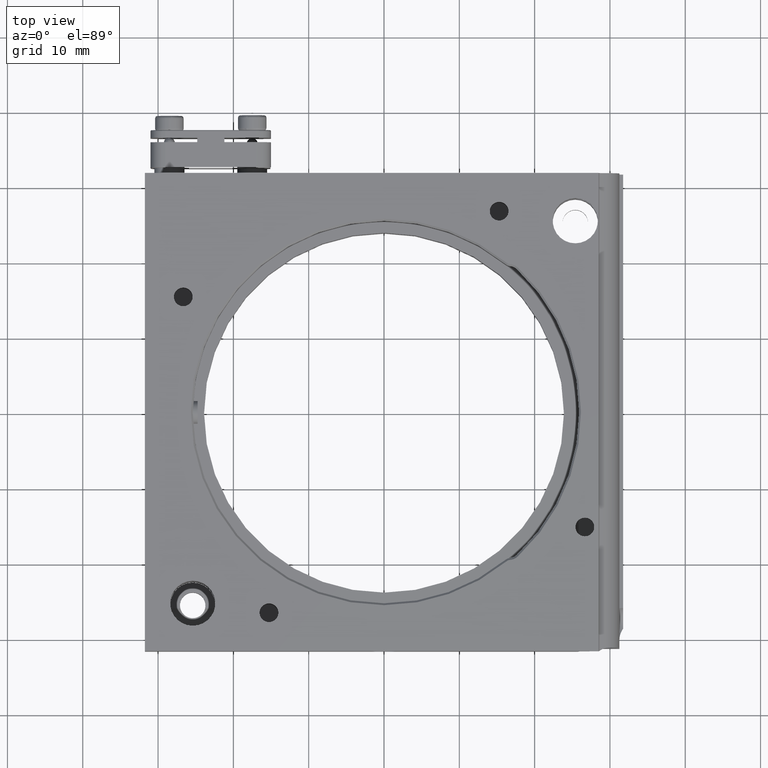
[diagram: clean part render]
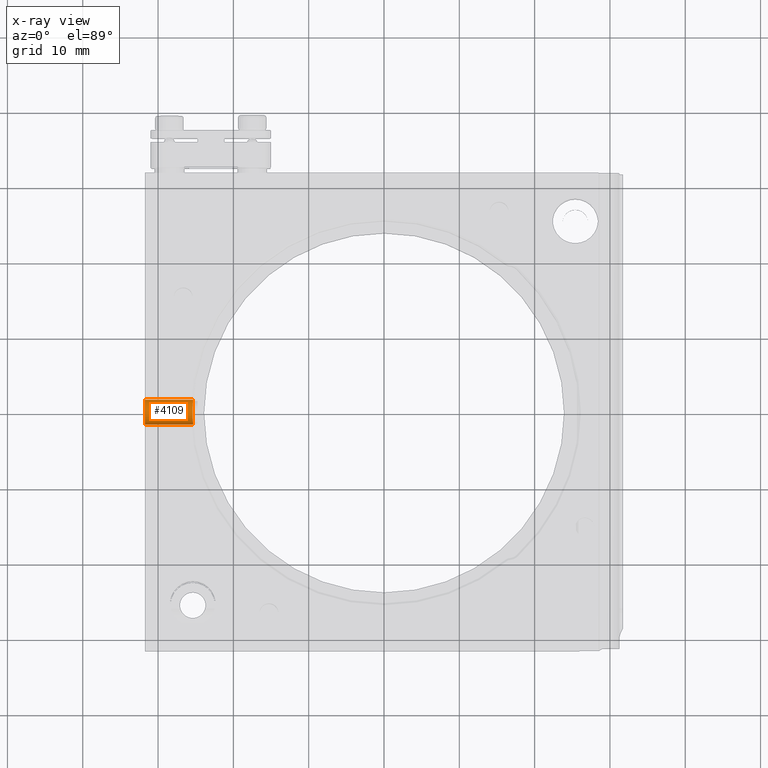
[diagram: x-ray — body ghosted, one internal face saturated and labeled with its STEP entity id]
A machine part, top view, then the same camera in x-ray: the body is ghosted and one INTERNAL B-rep face — a face not visible from any outside direction — is saturated and labeled: STEP entity #4109.
In plain terms, the highlighted cylindrical surface (edge-blend (fillet) strip) has radius 1.65 mm, axis along (-1, 0, -0).
Its self-contained STEP definition (entity closure, byte-faithful):
#483 = CARTESIAN_POINT ( 'NONE',  ( -31.75000000000000000, 1.649999999999995914, 6.249999999999998224 ) ) ;
#624 = CARTESIAN_POINT ( 'NONE',  ( -25.35965144490063139, 1.432363571366435995, 5.423897442466319774 ) ) ;
#685 = B_SPLINE_CURVE_WITH_KNOTS ( 'NONE', 3,
 ( #2923, #4619, #6178, #7594, #6032, #9273, #624, #9328, #8408, #3071, #2152, #3125, #5279, #732, #3741, #2256, #3843, #6839, #9918, #9224, #4568, #6942, #2976, #3792, #8561, #7648 ),
 .UNSPECIFIED., .F., .F.,
 ( 4, 2, 2, 2, 2, 2, 2, 2, 2, 2, 2, 2, 4 ),
 ( 0.002578239946919240466, 0.002900521519949634218, 0.003222803092980028403, 0.003545084666010422155, 0.003867366239040816341, 0.004511929385101603844, 0.005156492531162391348, 0.005478774104192785099, 0.005801055677223178851, 0.006123337250253572603, 0.006445618823283967222, 0.007090181969344757328, 0.007734745115405546566 ),
 .UNSPECIFIED. ) ;
#732 = CARTESIAN_POINT ( 'NONE',  ( -25.39999998176180540, -0.1089796337485973293, 4.600000280757642557 ) ) ;
#1116 = VERTEX_POINT ( 'NONE', #5051 ) ;
#1150 = CARTESIAN_POINT ( 'NONE',  ( -25.34635082215978485, -1.649999999999998579, 6.249999999999998224 ) ) ;
#1581 = DIRECTION ( 'NONE',  ( -1.000000000000000000, 5.551115123125782702E-17, -1.232595164407830946E-32 ) ) ;
#2152 = CARTESIAN_POINT ( 'NONE',  ( -25.38717044940126044, 0.8312330004580452680, 4.808581895595295030 ) ) ;
#2256 = CARTESIAN_POINT ( 'NONE',  ( -25.39663054787494545, -0.4269281395663249157, 4.652570847904353712 ) ) ;
#2296 = EDGE_CURVE ( 'NONE', #4904, #3871, #6404, .T. ) ;
#2341 = VECTOR ( 'NONE', #1581, 1000.000000000000000 ) ;
#2594 = DIRECTION ( 'NONE',  ( 0.000000000000000000, -1.000000000000000000, 0.000000000000000000 ) ) ;
#2832 = EDGE_CURVE ( 'NONE', #1116, #9043, #5418, .T. ) ;
#2923 = CARTESIAN_POINT ( 'NONE',  ( -25.34635082215978485, 1.649999999999995248, 6.249999999999998224 ) ) ;
#2976 = CARTESIAN_POINT ( 'NONE',  ( -25.35920202362326847, -1.441417493431952135, 5.418766164113271167 ) ) ;
#3071 = CARTESIAN_POINT ( 'NONE',  ( -25.38016462358086756, 1.015091016159176851, 4.931532343093524062 ) ) ;
#3125 = CARTESIAN_POINT ( 'NONE',  ( -25.39705834915696059, 0.4345099970300480008, 4.643813362265427180 ) ) ;
#3144 = EDGE_LOOP ( 'NONE', ( #4983, #5161, #5838, #6935 ) ) ;
#3299 = DIRECTION ( 'NONE',  ( -1.000000000000000000, 5.551115123125782702E-17, -1.232595164407830946E-32 ) ) ;
#3741 = CARTESIAN_POINT ( 'NONE',  ( -25.39929918249136875, -0.2161292666481816616, 4.610690489133705050 ) ) ;
#3747 = EDGE_CURVE ( 'NONE', #1116, #4904, #685, .T. ) ;
#3792 = CARTESIAN_POINT ( 'NONE',  ( -25.34929937498809949, -1.606185811958850129, 5.815487379059358197 ) ) ;
#3843 = CARTESIAN_POINT ( 'NONE',  ( -25.39463141391721024, -0.5316699408913867497, 4.684270159440830028 ) ) ;
#3871 = VERTEX_POINT ( 'NONE', #6282 ) ;
#4109 = ADVANCED_FACE ( 'NONE', ( #5614 ), #8551, .F. ) ;
#4568 = CARTESIAN_POINT ( 'NONE',  ( -25.37670523010321944, -1.090243661757398952, 5.006844591166569991 ) ) ;
#4619 = CARTESIAN_POINT ( 'NONE',  ( -25.34635082215978130, 1.649999999999995026, 6.141024205273757808 ) ) ;
#4904 = VERTEX_POINT ( 'NONE', #1150 ) ;
#4983 = ORIENTED_EDGE ( 'NONE', *, *, #3747, .F. ) ;
#5051 = CARTESIAN_POINT ( 'NONE',  ( -25.34635082215978485, 1.649999999999995248, 6.249999999999998224 ) ) ;
#5161 = ORIENTED_EDGE ( 'NONE', *, *, #2832, .T. ) ;
#5178 = AXIS2_PLACEMENT_3D ( 'NONE', #9506, #7175, #7990 ) ;
#5279 = CARTESIAN_POINT ( 'NONE',  ( -25.40000003647531912, 0.2179465148626199555, 4.599999438501136240 ) ) ;
#5418 = LINE ( 'NONE', #8603, #2341 ) ;
#5614 = FACE_OUTER_BOUND ( 'NONE', #3144, .T. ) ;
#5641 = CARTESIAN_POINT ( 'NONE',  ( -31.75000000000000000, -1.649999999999998357, 6.249999999999998224 ) ) ;
#5838 = ORIENTED_EDGE ( 'NONE', *, *, #7324, .T. ) ;
#6032 = CARTESIAN_POINT ( 'NONE',  ( -25.35172982305336120, 1.565730696937139177, 5.718332524613455981 ) ) ;
#6069 = VECTOR ( 'NONE', #3299, 1000.000000000000000 ) ;
#6178 = CARTESIAN_POINT ( 'NONE',  ( -25.34705314301840318, 1.639309988215742697, 6.033874200478051897 ) ) ;
#6282 = CARTESIAN_POINT ( 'NONE',  ( -31.75000000000000000, -1.649999999999998357, 6.249999999999998224 ) ) ;
#6404 = LINE ( 'NONE', #5641, #6069 ) ;
#6710 = AXIS2_PLACEMENT_3D ( 'NONE', #7260, #8025, #2594 ) ;
#6839 = CARTESIAN_POINT ( 'NONE',  ( -25.38966434015355134, -0.7313838042324435351, 4.767009578395272840 ) ) ;
#6871 = CIRCLE ( 'NONE', #6710, 1.649999999999997025 ) ;
#6935 = ORIENTED_EDGE ( 'NONE', *, *, #2296, .F. ) ;
#6942 = CARTESIAN_POINT ( 'NONE',  ( -25.36621457026918947, -1.318467551842964269, 5.234908986941006148 ) ) ;
#7175 = DIRECTION ( 'NONE',  ( -1.000000000000000000, 5.551115123125782702E-17, -1.232595164407830946E-32 ) ) ;
#7260 = CARTESIAN_POINT ( 'NONE',  ( -31.75000000000000000, -1.360023205165816762E-15, 6.249999999999998224 ) ) ;
#7324 = EDGE_CURVE ( 'NONE', #9043, #3871, #6871, .T. ) ;
#7594 = CARTESIAN_POINT ( 'NONE',  ( -25.34972697951497622, 1.597429915994128979, 5.823074640985229422 ) ) ;
#7648 = CARTESIAN_POINT ( 'NONE',  ( -25.34635082215978485, -1.649999999999998579, 6.249999999999998224 ) ) ;
#7990 = DIRECTION ( 'NONE',  ( 0.000000000000000000, -1.000000000000000000, 0.000000000000000000 ) ) ;
#8025 = DIRECTION ( 'NONE',  ( -1.000000000000000000, 5.551115123125782702E-17, -1.232595164407830946E-32 ) ) ;
#8408 = CARTESIAN_POINT ( 'NONE',  ( -25.36967391611437606, 1.243156029150827235, 5.159757013076982979 ) ) ;
#8551 = CYLINDRICAL_SURFACE ( 'NONE', #5178, 1.649999999999997025 ) ;
#8561 = CARTESIAN_POINT ( 'NONE',  ( -25.34635082215978485, -1.649999999999998801, 6.032046988008122668 ) ) ;
#8603 = CARTESIAN_POINT ( 'NONE',  ( -31.75000000000000000, 1.649999999999995692, 6.249999999999998224 ) ) ;
#9043 = VERTEX_POINT ( 'NONE', #483 ) ;
#9224 = CARTESIAN_POINT ( 'NONE',  ( -25.38025349492025740, -1.005374278360348539, 4.937242088719339783 ) ) ;
#9273 = CARTESIAN_POINT ( 'NONE',  ( -25.35670432648689854, 1.482991347090595546, 5.518618031279425296 ) ) ;
#9328 = CARTESIAN_POINT ( 'NONE',  ( -25.36612409306743032, 1.312758661191259391, 5.244626669535823460 ) ) ;
#9506 = CARTESIAN_POINT ( 'NONE',  ( -31.75000000000000000, -1.360023205165816762E-15, 6.249999999999998224 ) ) ;
#9918 = CARTESIAN_POINT ( 'NONE',  ( -25.38672087770468266, -0.8261040996835207206, 4.817637340020120895 ) ) ;